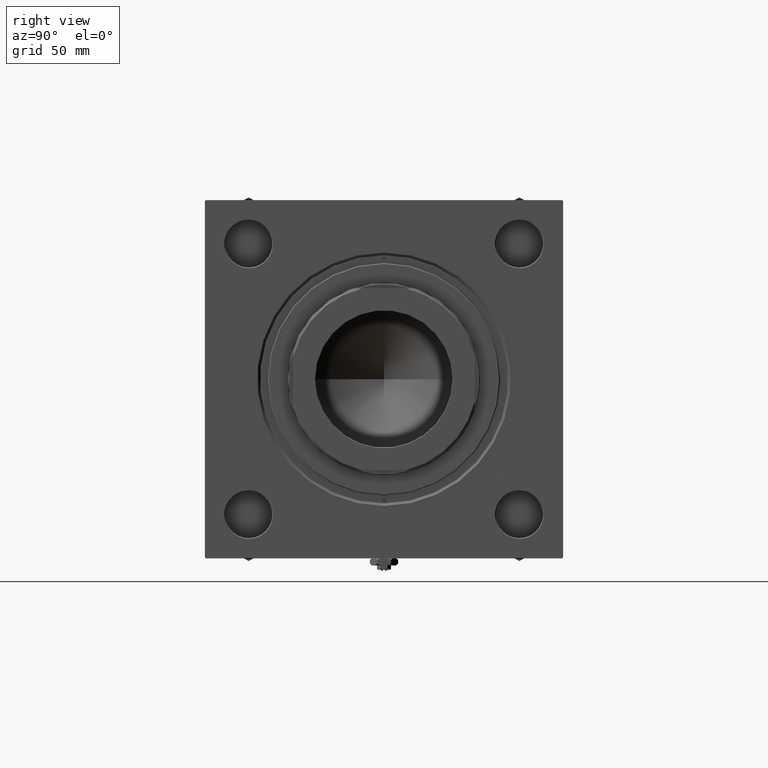
[diagram: clean part render]
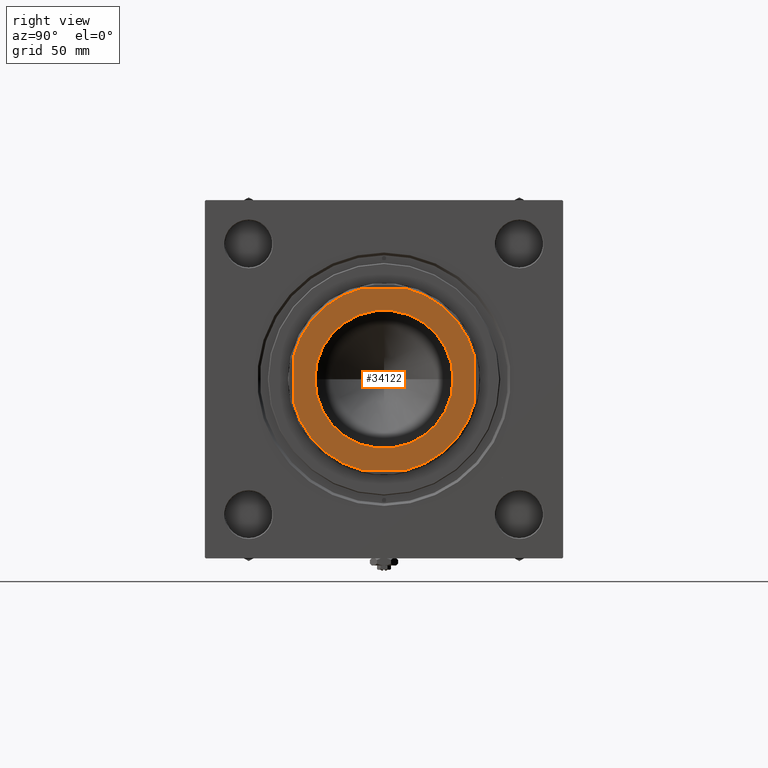
[diagram: same view with one face highlighted and labeled with its STEP entity id]
A machine part, right view. The second image highlights one B-rep face of the part: STEP entity #34122.
In plain terms, the highlighted planar face has unit normal (1, 0, 0).
Its self-contained STEP definition (entity closure, byte-faithful):
#113 = DIRECTION ( 'NONE',  ( 1.000000000000000000, 0.000000000000000000, 0.000000000000000000 ) ) ;
#901 = VERTEX_POINT ( 'NONE', #33323 ) ;
#977 = AXIS2_PLACEMENT_3D ( 'NONE', #49545, #36561, #113 ) ;
#1081 = ORIENTED_EDGE ( 'NONE', *, *, #48514, .T. ) ;
#1490 = AXIS2_PLACEMENT_3D ( 'NONE', #27698, #28220, #47622 ) ;
#1507 = CARTESIAN_POINT ( 'NONE',  ( -51.99999999999999289, 52.00000000000001421, 205.0000000000000000 ) ) ;
#3321 = VERTEX_POINT ( 'NONE', #37266 ) ;
#3536 = CIRCLE ( 'NONE', #977, 53.49999999999987921 ) ;
#4998 = VECTOR ( 'NONE', #41188, 1000.000000000000000 ) ;
#5263 = CARTESIAN_POINT ( 'NONE',  ( 12.57974562540872832, 52.00000000000001421, 205.0000000000000000 ) ) ;
#5823 = AXIS2_PLACEMENT_3D ( 'NONE', #29202, #32932, #49655 ) ;
#6284 = EDGE_CURVE ( 'NONE', #7757, #37598, #36011, .T. ) ;
#6906 = VERTEX_POINT ( 'NONE', #44754 ) ;
#7107 = AXIS2_PLACEMENT_3D ( 'NONE', #37575, #37319, #20845 ) ;
#7645 = DIRECTION ( 'NONE',  ( -1.000000000000000000, -0.000000000000000000, -0.000000000000000000 ) ) ;
#7757 = VERTEX_POINT ( 'NONE', #40014 ) ;
#7820 = DIRECTION ( 'NONE',  ( 1.000000000000000000, 0.000000000000000000, 0.000000000000000000 ) ) ;
#7995 = FACE_OUTER_BOUND ( 'NONE', #49395, .T. ) ;
#8215 = CARTESIAN_POINT ( 'NONE',  ( 52.00000000000001421, 52.00000000000001421, 205.0000000000000000 ) ) ;
#8616 = CIRCLE ( 'NONE', #46840, 39.54999999999997584 ) ;
#9076 = CIRCLE ( 'NONE', #51520, 53.49999999999987921 ) ;
#10154 = VECTOR ( 'NONE', #25454, 1000.000000000000000 ) ;
#10277 = LINE ( 'NONE', #26500, #32469 ) ;
#10555 = DIRECTION ( 'NONE',  ( 1.000000000000000000, 0.000000000000000000, 0.000000000000000000 ) ) ;
#12220 = LINE ( 'NONE', #8215, #4998 ) ;
#12839 = DIRECTION ( 'NONE',  ( 1.000000000000000000, 0.000000000000000000, 0.000000000000000000 ) ) ;
#14562 = DIRECTION ( 'NONE',  ( -0.000000000000000000, 0.000000000000000000, 1.000000000000000000 ) ) ;
#16496 = ORIENTED_EDGE ( 'NONE', *, *, #36641, .T. ) ;
#16506 = EDGE_CURVE ( 'NONE', #51348, #49618, #35330, .T. ) ;
#16885 = CIRCLE ( 'NONE', #5823, 53.49999999999995737 ) ;
#17523 = CARTESIAN_POINT ( 'NONE',  ( 52.00000000000001421, -12.57974562540856844, 205.0000000000000000 ) ) ;
#18813 = CARTESIAN_POINT ( 'NONE',  ( 0.000000000000000000, 0.000000000000000000, 205.0000000000000000 ) ) ;
#19463 = PLANE ( 'NONE',  #1490 ) ;
#20845 = DIRECTION ( 'NONE',  ( 1.000000000000000000, 0.000000000000000000, 0.000000000000000000 ) ) ;
#20988 = EDGE_CURVE ( 'NONE', #47658, #51348, #21959, .T. ) ;
#21959 = CIRCLE ( 'NONE', #27090, 53.49999999999991473 ) ;
#22665 = ORIENTED_EDGE ( 'NONE', *, *, #16506, .T. ) ;
#23041 = EDGE_CURVE ( 'NONE', #29776, #47658, #12220, .T. ) ;
#23456 = CARTESIAN_POINT ( 'NONE',  ( 12.57974562540865726, -51.99999999999999289, 205.0000000000000000 ) ) ;
#25454 = DIRECTION ( 'NONE',  ( 1.334402673828313093E-16, -1.000000000000000000, 0.000000000000000000 ) ) ;
#26251 = ORIENTED_EDGE ( 'NONE', *, *, #6284, .T. ) ;
#26500 = CARTESIAN_POINT ( 'NONE',  ( -51.99999999999997868, -51.99999999999999289, 205.0000000000000000 ) ) ;
#27090 = AXIS2_PLACEMENT_3D ( 'NONE', #31997, #41020, #12839 ) ;
#27622 = ORIENTED_EDGE ( 'NONE', *, *, #47572, .T. ) ;
#27698 = CARTESIAN_POINT ( 'NONE',  ( 0.000000000000000000, 0.000000000000000000, 205.0000000000000000 ) ) ;
#28220 = DIRECTION ( 'NONE',  ( -0.000000000000000000, 0.000000000000000000, 1.000000000000000000 ) ) ;
#28726 = ORIENTED_EDGE ( 'NONE', *, *, #46807, .T. ) ;
#29202 = CARTESIAN_POINT ( 'NONE',  ( 0.000000000000000000, 0.000000000000000000, 205.0000000000000000 ) ) ;
#29776 = VERTEX_POINT ( 'NONE', #17523 ) ;
#30695 = ORIENTED_EDGE ( 'NONE', *, *, #20988, .T. ) ;
#31853 = CARTESIAN_POINT ( 'NONE',  ( -51.99999999999999289, 52.00000000000001421, 205.0000000000000000 ) ) ;
#31997 = CARTESIAN_POINT ( 'NONE',  ( 0.000000000000000000, 0.000000000000000000, 205.0000000000000000 ) ) ;
#32409 = EDGE_CURVE ( 'NONE', #3321, #901, #9076, .T. ) ;
#32450 = ORIENTED_EDGE ( 'NONE', *, *, #32409, .T. ) ;
#32469 = VECTOR ( 'NONE', #34738, 1000.000000000000000 ) ;
#32932 = DIRECTION ( 'NONE',  ( -0.000000000000000000, 0.000000000000000000, 1.000000000000000000 ) ) ;
#33323 = CARTESIAN_POINT ( 'NONE',  ( -12.57974562540865904, -51.99999999999999289, 205.0000000000000000 ) ) ;
#34002 = CARTESIAN_POINT ( 'NONE',  ( -39.54999999999997584, 4.843478090627778580E-15, 205.0000000000000000 ) ) ;
#34122 = ADVANCED_FACE ( 'NONE', ( #52392, #7995 ), #19463, .T. ) ;
#34738 = DIRECTION ( 'NONE',  ( 1.000000000000000000, 0.000000000000000000, 0.000000000000000000 ) ) ;
#35330 = LINE ( 'NONE', #31853, #36270 ) ;
#36011 = CIRCLE ( 'NONE', #7107, 39.54999999999997584 ) ;
#36270 = VECTOR ( 'NONE', #7645, 1000.000000000000000 ) ;
#36328 = VERTEX_POINT ( 'NONE', #23456 ) ;
#36561 = DIRECTION ( 'NONE',  ( -0.000000000000000000, 0.000000000000000000, 1.000000000000000000 ) ) ;
#36641 = EDGE_CURVE ( 'NONE', #49618, #6906, #16885, .T. ) ;
#37266 = CARTESIAN_POINT ( 'NONE',  ( -51.99999999999998579, -12.57974562540868213, 205.0000000000000000 ) ) ;
#37319 = DIRECTION ( 'NONE',  ( 0.000000000000000000, -0.000000000000000000, -1.000000000000000000 ) ) ;
#37575 = CARTESIAN_POINT ( 'NONE',  ( 0.000000000000000000, 0.000000000000000000, 205.0000000000000000 ) ) ;
#37598 = VERTEX_POINT ( 'NONE', #34002 ) ;
#38724 = EDGE_CURVE ( 'NONE', #6906, #3321, #45648, .T. ) ;
#40014 = CARTESIAN_POINT ( 'NONE',  ( 39.54999999999997584, 0.000000000000000000, 205.0000000000000000 ) ) ;
#40897 = ORIENTED_EDGE ( 'NONE', *, *, #38724, .T. ) ;
#41020 = DIRECTION ( 'NONE',  ( -0.000000000000000000, 0.000000000000000000, 1.000000000000000000 ) ) ;
#41188 = DIRECTION ( 'NONE',  ( -0.000000000000000000, 1.000000000000000000, -0.000000000000000000 ) ) ;
#41559 = CARTESIAN_POINT ( 'NONE',  ( -12.57974562540890062, 52.00000000000001421, 205.0000000000000000 ) ) ;
#42400 = EDGE_LOOP ( 'NONE', ( #26251, #28726 ) ) ;
#42642 = CARTESIAN_POINT ( 'NONE',  ( 52.00000000000001421, 12.57974562540872654, 205.0000000000000000 ) ) ;
#42870 = ORIENTED_EDGE ( 'NONE', *, *, #23041, .T. ) ;
#44252 = CARTESIAN_POINT ( 'NONE',  ( 0.000000000000000000, 0.000000000000000000, 205.0000000000000000 ) ) ;
#44754 = CARTESIAN_POINT ( 'NONE',  ( -51.99999999999998579, 12.57974562540899832, 205.0000000000000000 ) ) ;
#45648 = LINE ( 'NONE', #1507, #10154 ) ;
#46807 = EDGE_CURVE ( 'NONE', #37598, #7757, #8616, .T. ) ;
#46840 = AXIS2_PLACEMENT_3D ( 'NONE', #44252, #51954, #7820 ) ;
#47572 = EDGE_CURVE ( 'NONE', #36328, #29776, #3536, .T. ) ;
#47622 = DIRECTION ( 'NONE',  ( 1.000000000000000000, 0.000000000000000000, 0.000000000000000000 ) ) ;
#47658 = VERTEX_POINT ( 'NONE', #42642 ) ;
#48514 = EDGE_CURVE ( 'NONE', #901, #36328, #10277, .T. ) ;
#49395 = EDGE_LOOP ( 'NONE', ( #42870, #30695, #22665, #16496, #40897, #32450, #1081, #27622 ) ) ;
#49545 = CARTESIAN_POINT ( 'NONE',  ( 0.000000000000000000, 0.000000000000000000, 205.0000000000000000 ) ) ;
#49618 = VERTEX_POINT ( 'NONE', #41559 ) ;
#49655 = DIRECTION ( 'NONE',  ( 1.000000000000000000, 0.000000000000000000, 0.000000000000000000 ) ) ;
#51348 = VERTEX_POINT ( 'NONE', #5263 ) ;
#51520 = AXIS2_PLACEMENT_3D ( 'NONE', #18813, #14562, #10555 ) ;
#51954 = DIRECTION ( 'NONE',  ( 0.000000000000000000, -0.000000000000000000, -1.000000000000000000 ) ) ;
#52392 = FACE_BOUND ( 'NONE', #42400, .T. ) ;